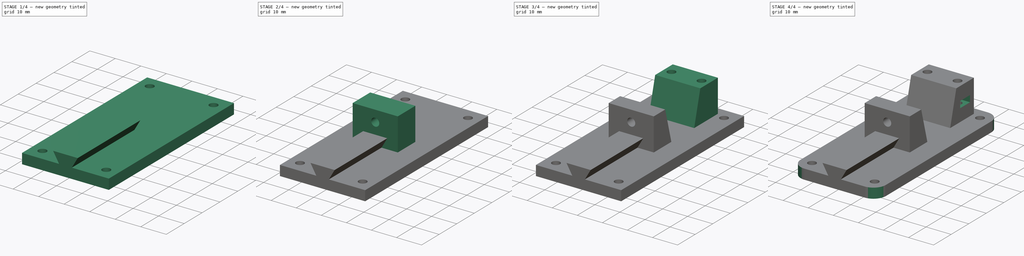
[diagram: build sequence overview — one tinted view per stage of 4, left to right]
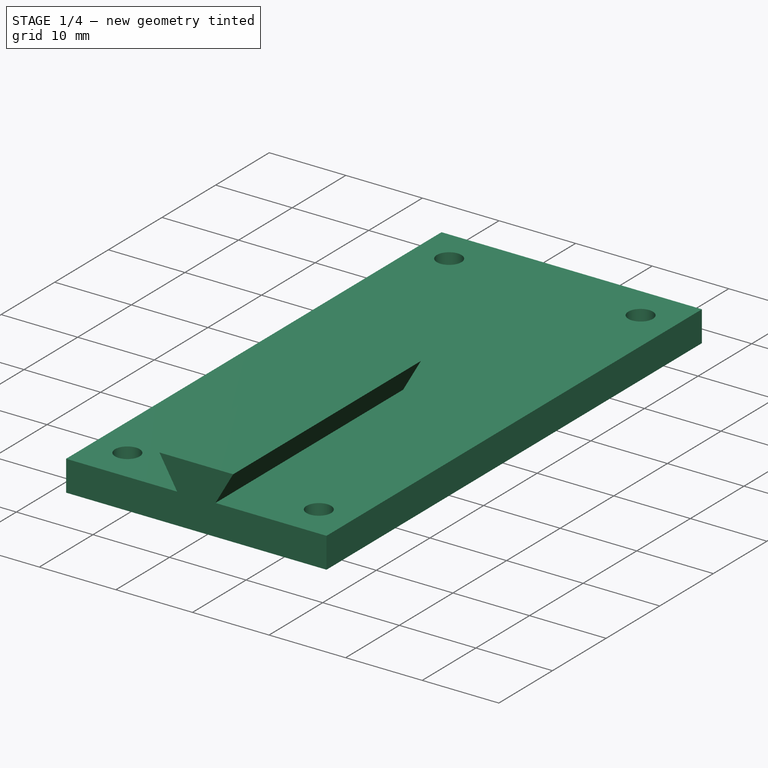
[diagram: stage 1 of 4 — iso view after this stage's code; geometry added in this stage tinted green]
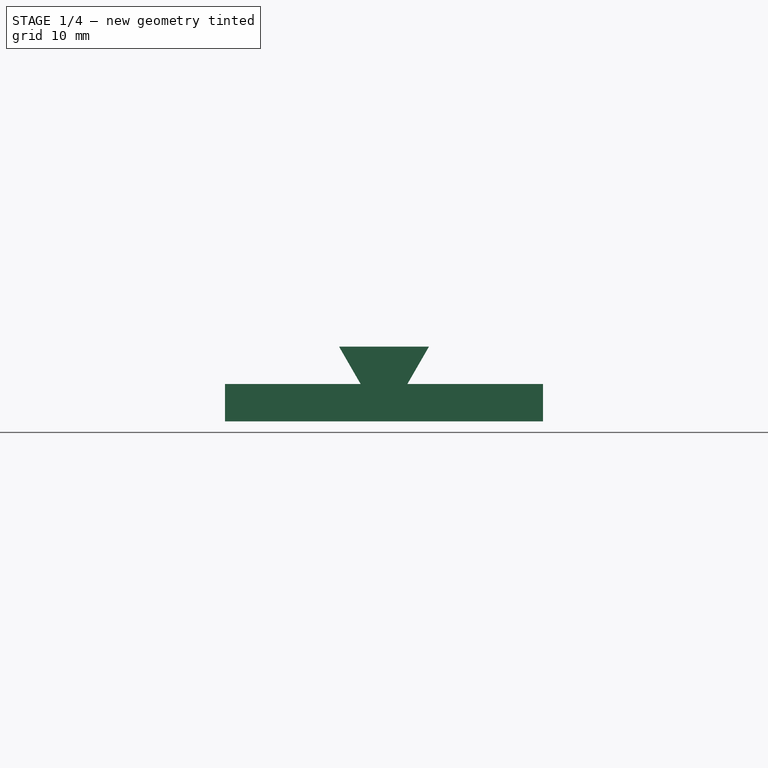
[diagram: stage 1 of 4 — front view after this stage's code; geometry added in this stage tinted green]
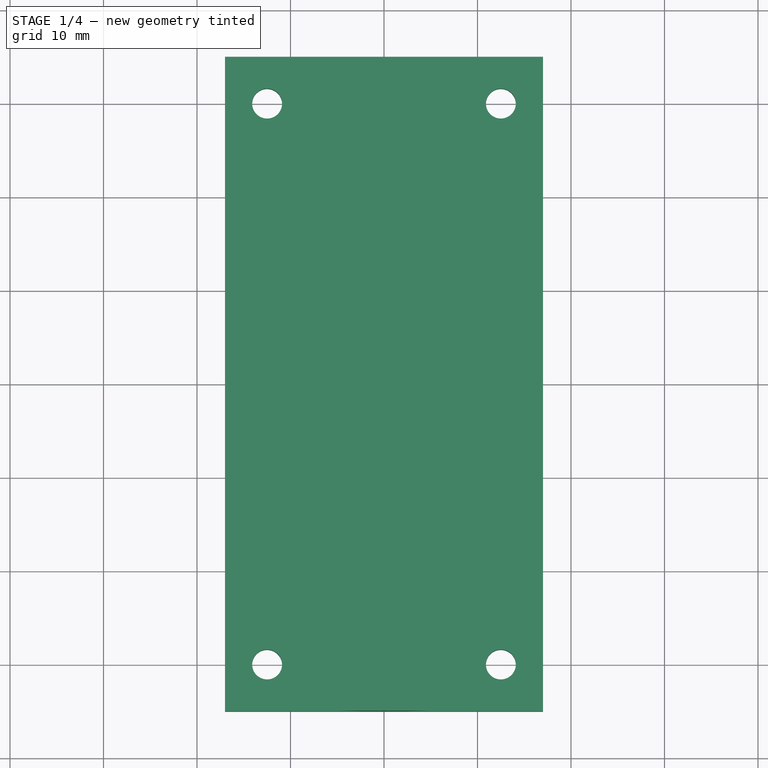
[diagram: stage 1 of 4 — top view after this stage's code; geometry added in this stage tinted green]
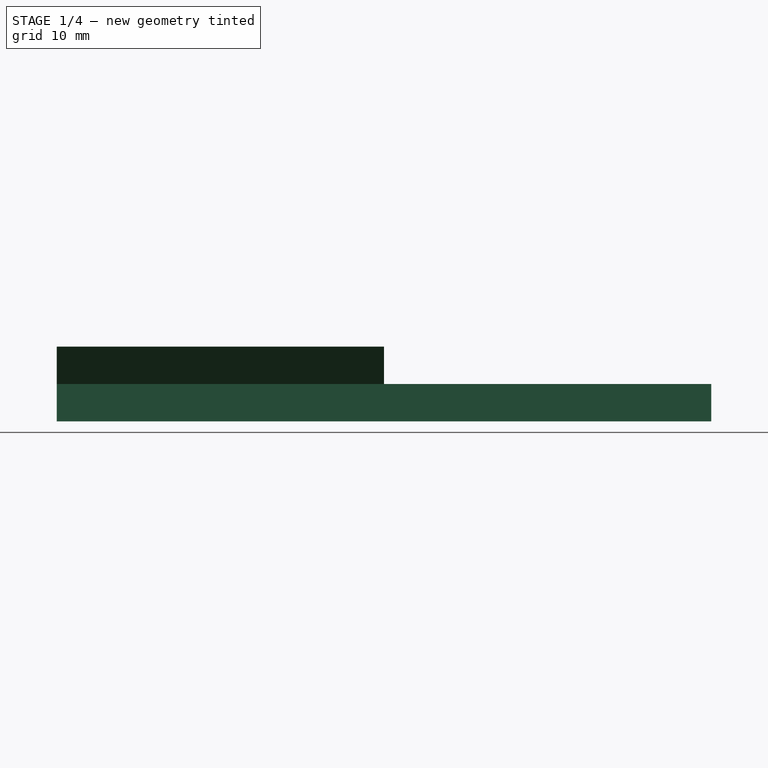
[diagram: stage 1 of 4 — right view after this stage's code; geometry added in this stage tinted green]
FCSTD DOCUMENT  (FreeCAD 0.18R14090 (Git))
Label: BedClamping2_Alt
License: All rights reserved
LicenseURL: http://en.wikipedia.org/wiki/All_rights_reserved
objects: Sketcher::SketchObject×7, PartDesign::Pad×4, PartDesign::Pocket×3, PartDesign::Draft×2, PartDesign::Plane×1, PartDesign::Fillet×1, PartDesign::Body×1, App::Part×1
note: 26 computed .brp shape members not serialized (recipe doc carries the construction recipe); baked Part::Feature solids carry a one-line shape summary decoded from their .brp

FEATURE [Sketcher::SketchObject] Sketch008  label="BC_RailSketch"
  MapMode = 5
  Placement = pos=(0,0,0) rot=(1,0,0;1.5708rad)
  Support = -> [XZ_Plane001]
  sketch-geometry (8):
    g0: LineSegment StartX=9 StartY=0 StartZ=0 EndX=9 EndY=4 EndZ=0
    g1: LineSegment StartX=-9 StartY=0 StartZ=0 EndX=-9 EndY=4 EndZ=0
    g2: LineSegment StartX=-9 StartY=4 StartZ=0 EndX=-2.5 EndY=4 EndZ=0
    g3: LineSegment StartX=9 StartY=4 StartZ=0 EndX=2.5 EndY=4 EndZ=0
    g4: LineSegment StartX=-2.5 StartY=4 StartZ=0 EndX=-4.8094 EndY=8 EndZ=0
    g5: LineSegment StartX=-4.8094 StartY=8 StartZ=0 EndX=4.8094 EndY=8 EndZ=0
    g6: LineSegment StartX=4.8094 StartY=8 StartZ=0 EndX=2.5 EndY=4 EndZ=0
    g7: LineSegment StartX=-9 StartY=0 StartZ=0 EndX=9 EndY=0 EndZ=0
  constraints (23):
    c: PointOnObject(g1,g-1)
    c: Vertical(g0)
    c: Vertical(g1)
    c: Coincident(g2,g1)
    c: Coincident(g3,g0)
    c: Coincident(g4,g2)
    c: Coincident(g5,g4)
    c: Horizontal(g5)
    c: Coincident(g6,g5)
    c: Coincident(g6,g3)
    c: Equal(g2,g3)
    c: Equal(g4,g6)
    c: Angle(g4,g2) = 1.0472
    c: Distance(g2,g3) = 5
    c: Distance(g2,g5) = 4
    c: Distance(g7) = 18
    c: Coincident(g1,g7)
    c: Coincident(g0,g7)
    c: Horizontal(g2)
    c: Horizontal(g3)
    c: Equal(g0,g1)
    c: Symmetric(g1,g0,g-2)
    c: Distance(g0) = 4
FEATURE [Sketcher::SketchObject] Sketch  label="BC_BaseSketch"
  MapMode = 5
  Support = -> [XY_Plane001]
  sketch-geometry (8):
    g0: LineSegment StartX=-17 StartY=35 StartZ=0 EndX=17 EndY=35 EndZ=0
    g1: LineSegment StartX=17 StartY=35 StartZ=0 EndX=17 EndY=-35 EndZ=0
    g2: LineSegment StartX=17 StartY=-35 StartZ=0 EndX=-17 EndY=-35 EndZ=0
    g3: LineSegment StartX=-17 StartY=-35 StartZ=0 EndX=-17 EndY=35 EndZ=0
    g4: Circle CenterX=-12.5 CenterY=30 CenterZ=0 NormalX=0 NormalY=0 NormalZ=1 AngleXU=0 Radius=1.6
    g5: Circle CenterX=12.5 CenterY=30 CenterZ=0 NormalX=0 NormalY=0 NormalZ=1 AngleXU=0 Radius=1.6
    g6: Circle CenterX=-12.5 CenterY=-30 CenterZ=0 NormalX=0 NormalY=0 NormalZ=1 AngleXU=0 Radius=1.6
    g7: Circle CenterX=12.5 CenterY=-30 CenterZ=0 NormalX=0 NormalY=0 NormalZ=1 AngleXU=0 Radius=1.6
  constraints (19):
    c: Coincident(g0,g1)
    c: Coincident(g1,g2)
    c: Coincident(g2,g3)
    c: Coincident(g3,g0)
    c: Horizontal(g0)
    c: Vertical(g3)
    c: Symmetric(g1,g2,g-2)
    c: Symmetric(g1,g0,g-1)
    c: Distance(g1) = 70
    c: Distance(g0) = 34
    c: Equal(g7,g5)
    c: Equal(g5,g4)
    c: Equal(g4,g6)
    c: Radius(g4) = 1.6
    c: Symmetric(g7,g6,g-2)
    c: Symmetric(g5,g4,g-2)
    c: Symmetric(g4,g6,g-1)
    c: Distance(g4,g5) = 25
    c: Distance(g5,g0) = 5
FEATURE [PartDesign::Pad] Pad  label="BC_BasePad"
  Length = 4
  Length2 = 100
  Profile = -> Sketch
  Type = 0
FEATURE [PartDesign::Pad] Pad001  label="BC_RailPad"
  BaseFeature = -> Pad
  Length = 35
  Length2 = 100
  Profile = -> Sketch008
  Type = 0
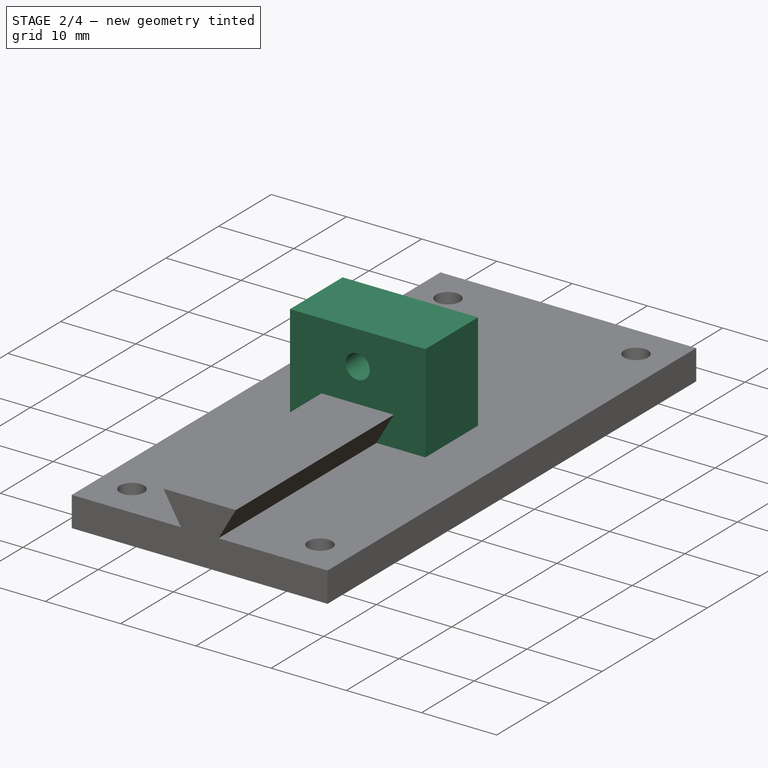
[diagram: stage 2 of 4 — iso view after this stage's code; geometry added in this stage tinted green]
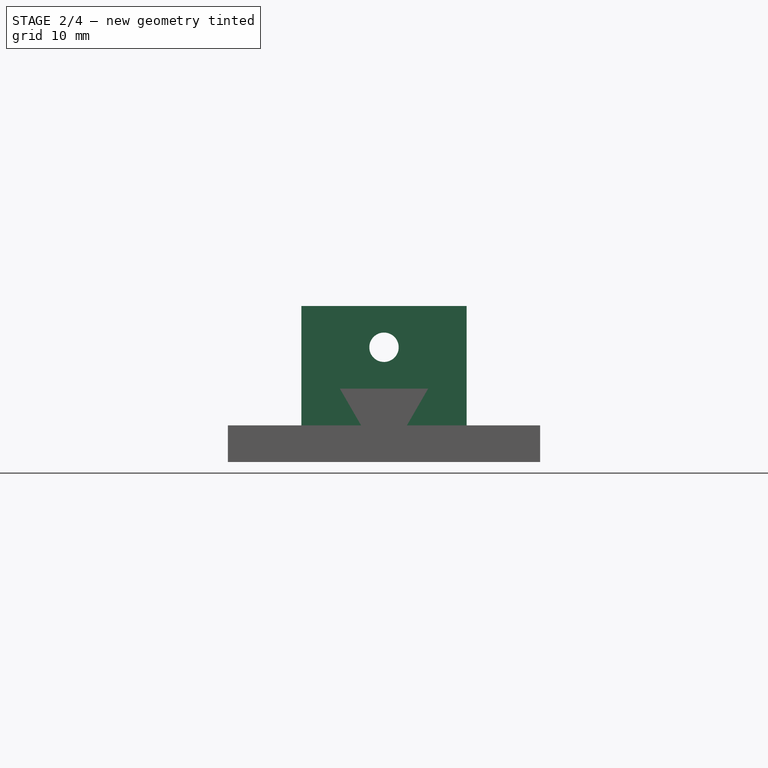
[diagram: stage 2 of 4 — front view after this stage's code; geometry added in this stage tinted green]
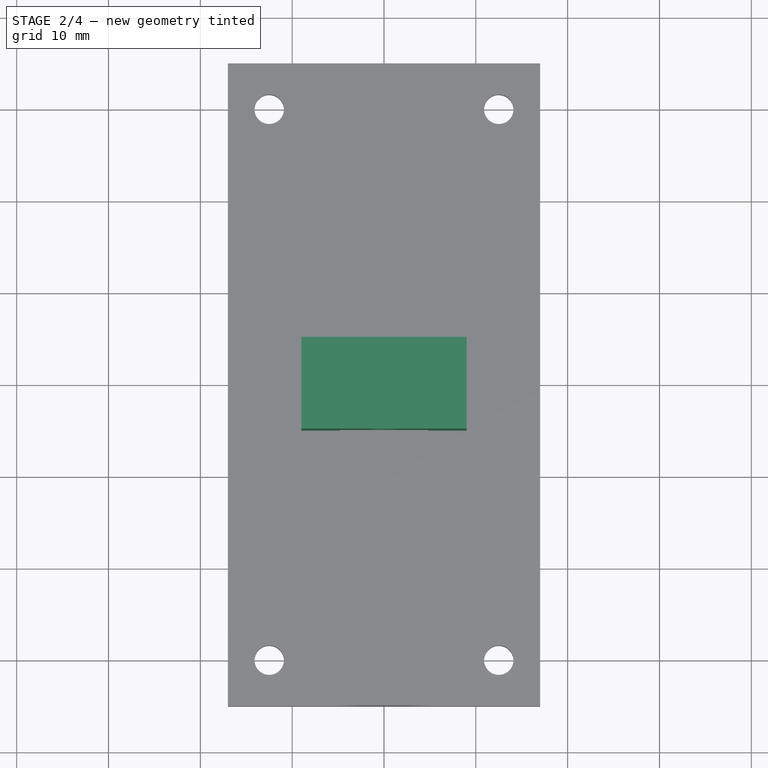
[diagram: stage 2 of 4 — top view after this stage's code; geometry added in this stage tinted green]
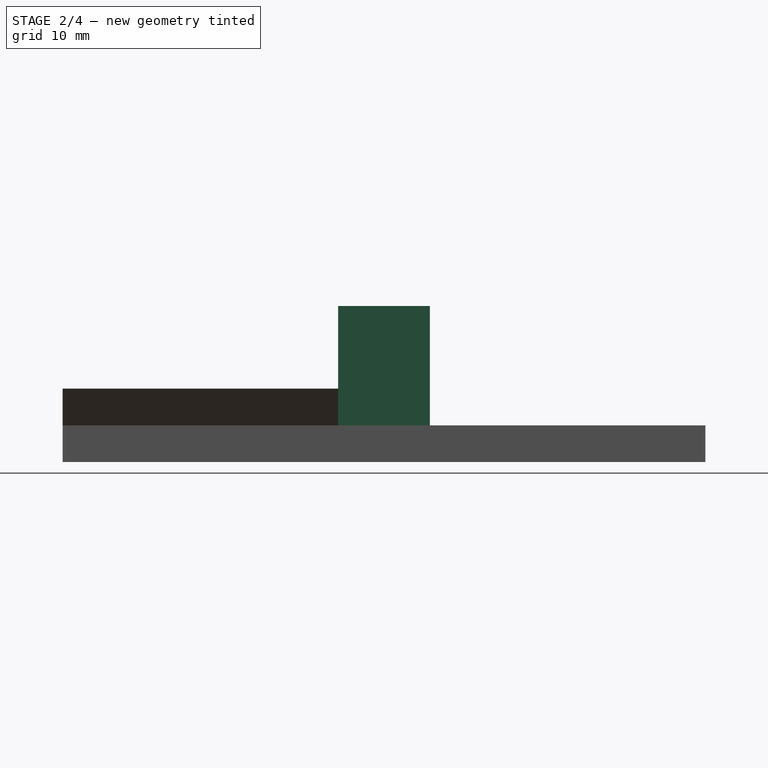
[diagram: stage 2 of 4 — right view after this stage's code; geometry added in this stage tinted green]
FEATURE [Sketcher::SketchObject] Sketch009  label="BC_BeltTensioner1Sketch"
  MapMode = 5
  Support = -> [XY_Plane001]
  sketch-geometry (4):
    g0: LineSegment StartX=-9 StartY=5 StartZ=0 EndX=9 EndY=5 EndZ=0
    g1: LineSegment StartX=9 StartY=5 StartZ=0 EndX=9 EndY=-5 EndZ=0
    g2: LineSegment StartX=9 StartY=-5 StartZ=0 EndX=-9 EndY=-5 EndZ=0
    g3: LineSegment StartX=-9 StartY=-5 StartZ=0 EndX=-9 EndY=5 EndZ=0
  constraints (10):
    c: Coincident(g0,g1)
    c: Coincident(g1,g2)
    c: Coincident(g2,g3)
    c: Coincident(g3,g0)
    c: Horizontal(g0)
    c: Vertical(g3)
    c: Symmetric(g1,g2,g-2)
    c: Symmetric(g1,g0,g-1)
    c: Distance(g0) = 18
    c: Distance(g3) = 10
FEATURE [PartDesign::Pad] Pad002  label="BC_BeltTensioner1Pad"
  BaseFeature = -> Pad001
  Length = 17
  Length2 = 100
  Profile = -> Sketch009
  Type = 0
FEATURE [Sketcher::SketchObject] Sketch010  label="BC_BeltTensioner1_ScrewHoleSketch"
  MapMode = 5
  Placement = pos=(0,0,0) rot=(1,0,0;1.5708rad)
  Support = -> [XZ_Plane001]
  sketch-geometry (1):
    g0: Circle CenterX=0 CenterY=12.5 CenterZ=0 NormalX=0 NormalY=0 NormalZ=1 AngleXU=0 Radius=1.6
  constraints (3):
    c: PointOnObject(g0,g-2)
    c: Distance(g-1,g0) = 12.5
    c: Radius(g0) = 1.6
FEATURE [PartDesign::Pocket] Pocket  label="BC_BeltTensioner1_ScrewHolePocket"
  BaseFeature = -> Pad002
  Length = 5
  Length2 = 100
  Midplane = true
  Profile = -> Sketch010
  Type = 1
FEATURE [Sketcher::SketchObject] Sketch011  label="BC_BeltTensioner1_ScrewNutSketch"
  ExternalGeometry = -> [Sketch010]
  MapMode = 5
  Placement = pos=(0,0,0) rot=(1,0,0;1.5708rad)
  Support = -> [XZ_Plane001]
  sketch-geometry (7):
    g0: LineSegment StartX=2.8 StartY=10.8834 StartZ=0 EndX=2.8 EndY=14.1166 EndZ=0
    g1: LineSegment StartX=2.8 StartY=14.1166 StartZ=0 EndX=0 EndY=15.7332 EndZ=0
    g2: LineSegment StartX=0 StartY=15.7332 StartZ=0 EndX=-2.8 EndY=14.1166 EndZ=0
    g3: LineSegment StartX=-2.8 StartY=14.1166 StartZ=0 EndX=-2.8 EndY=10.8834 EndZ=0
    g4: LineSegment StartX=-2.8 StartY=10.8834 StartZ=0 EndX=0 EndY=9.26684 EndZ=0
    g5: LineSegment StartX=0 StartY=9.26684 StartZ=0 EndX=2.8 EndY=10.8834 EndZ=0
    g6: Circle [constr] CenterX=0 CenterY=12.5 CenterZ=0 NormalX=0 NormalY=0 NormalZ=1 AngleXU=0 Radius=3.23316
  constraints (16):
    c: Coincident(g0,g1)
    c: Coincident(g1,g2)
    c: Coincident(g2,g3)
    c: Coincident(g3,g4)
    c: Coincident(g4,g5)
    c: Coincident(g5,g0)
    c: Equal(g0, g1-g5) x5
    c: PointOnObject(g0,g6)
    c: PointOnObject(g1,g6)
    c: PointOnObject(g2,g6)
    c: PointOnObject(g3,g6)
    c: PointOnObject(g4,g6)
    c: PointOnObject(g5,g6)
    c: Coincident(g6,g-3)
    c: Vertical(g0)
    c: Distance(g0,g2) = 5.6
FEATURE [PartDesign::Pocket] Pocket001  label="BC_BeltTensioner1_ScrewNutPocket"
  BaseFeature = -> Pocket
  Length = 5
  Length2 = 100
  Profile = -> Sketch011
  Type = 1
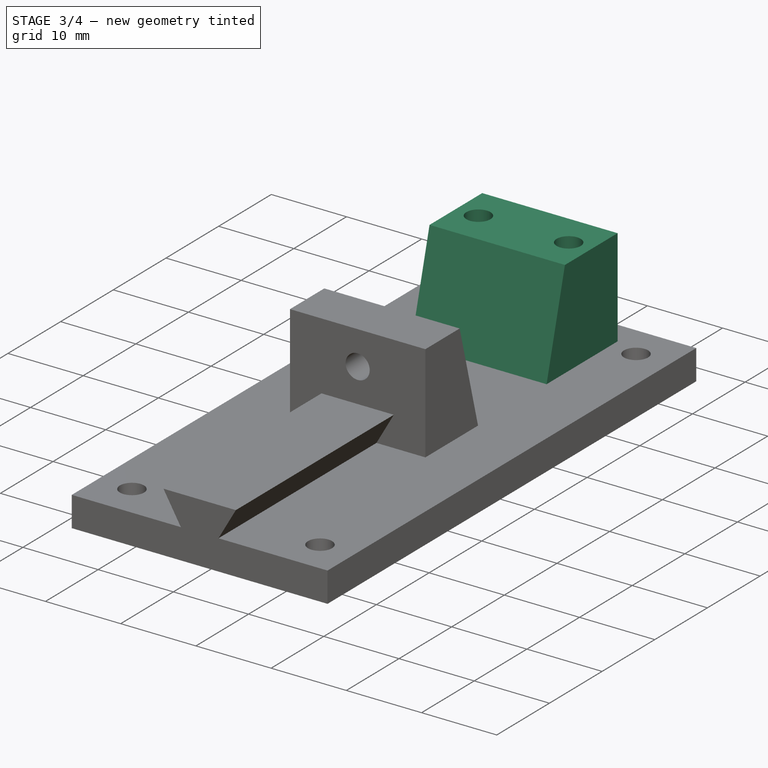
[diagram: stage 3 of 4 — iso view after this stage's code; geometry added in this stage tinted green]
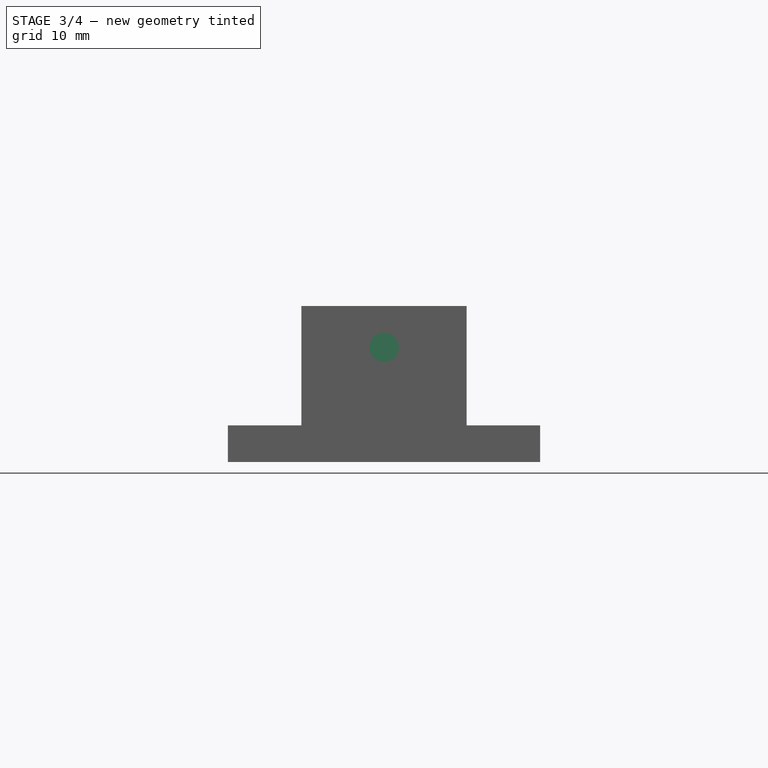
[diagram: stage 3 of 4 — front view after this stage's code; geometry added in this stage tinted green]
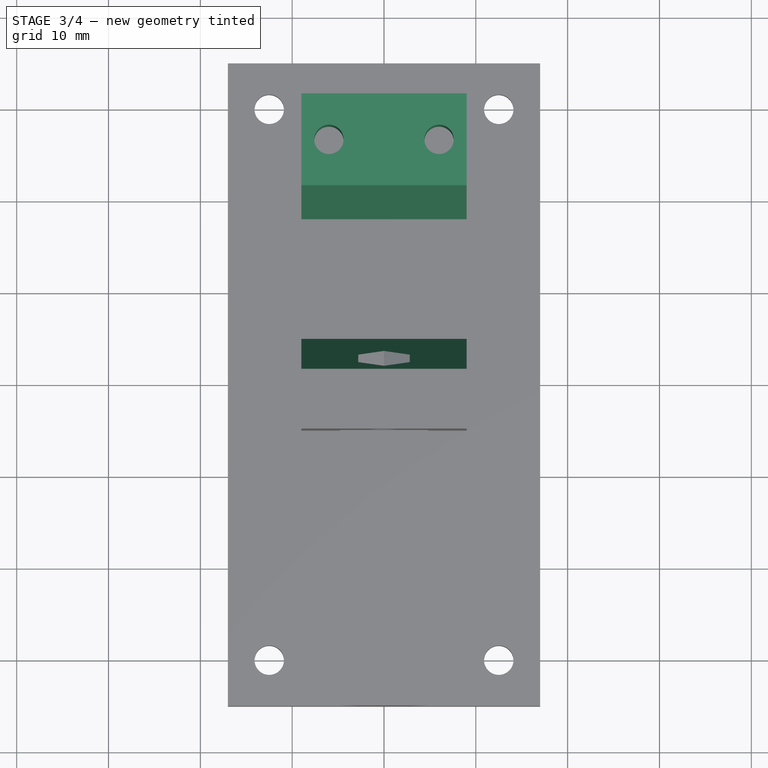
[diagram: stage 3 of 4 — top view after this stage's code; geometry added in this stage tinted green]
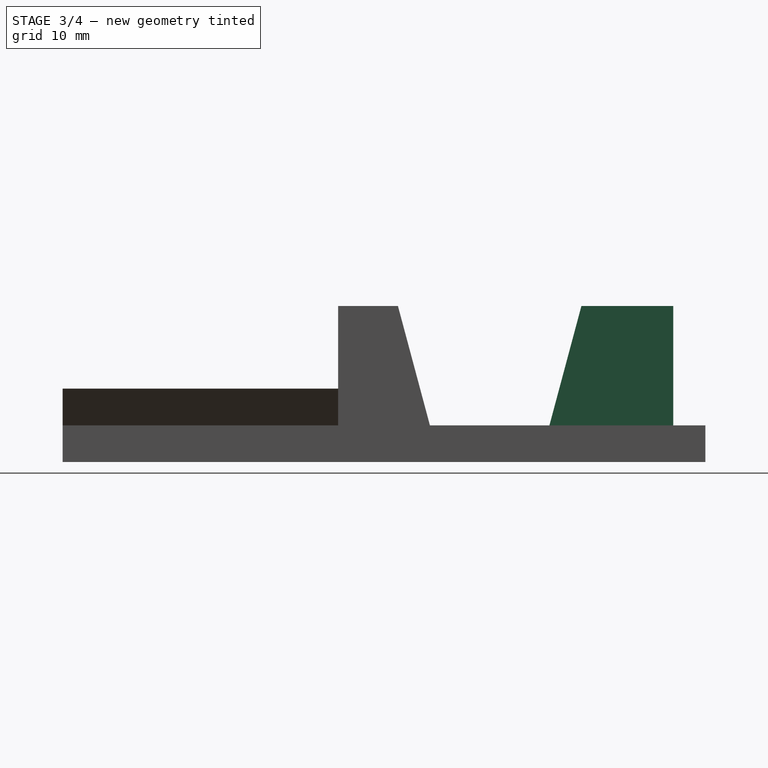
[diagram: stage 3 of 4 — right view after this stage's code; geometry added in this stage tinted green]
FEATURE [PartDesign::Draft] Draft  label="BC_BeltTensioner1Draft"
  Angle = 15
  Base = -> Pocket001 [Face17]
  BaseFeature = -> Pocket001
  NeutralPlane = -> Pocket001 [Face5]
  Reversed = true
FEATURE [Sketcher::SketchObject] Sketch012  label="BC_BeltTensioner2Sketch"
  ExternalGeometry = -> [Sketch]
  MapMode = 5
  Support = -> [XY_Plane001]
  sketch-geometry (8):
    g0: LineSegment StartX=-9 StartY=31.5 StartZ=0 EndX=9 EndY=31.5 EndZ=0
    g1: LineSegment StartX=9 StartY=31.5 StartZ=0 EndX=9 EndY=21.5 EndZ=0
    g2: LineSegment StartX=9 StartY=21.5 StartZ=0 EndX=-9 EndY=21.5 EndZ=0
    g3: LineSegment StartX=-9 StartY=21.5 StartZ=0 EndX=-9 EndY=31.5 EndZ=0
    g4: Circle CenterX=-6 CenterY=26.5 CenterZ=0 NormalX=0 NormalY=0 NormalZ=1 AngleXU=0 Radius=1.6
    g5: Circle CenterX=6 CenterY=26.5 CenterZ=0 NormalX=0 NormalY=0 NormalZ=1 AngleXU=0 Radius=1.6
    g6: LineSegment [constr] StartX=6 StartY=26.5 StartZ=0 EndX=6 EndY=31.5 EndZ=0
    g7: LineSegment [constr] StartX=6 StartY=26.5 StartZ=0 EndX=6 EndY=21.5 EndZ=0
  constraints (22):
    c: Coincident(g0,g1)
    c: Coincident(g1,g2)
    c: Coincident(g2,g3)
    c: Coincident(g3,g0)
    c: Horizontal(g2)
    c: Vertical(g1)
    c: Vertical(g3)
    c: Distance(g2,g-3) = 13.5
    c: Distance(g3) = 10
    c: Distance(g0) = 18
    c: Symmetric(g0,g0,g-2)
    c: Symmetric(g5,g4,g-2)
    c: Coincident(g6,g5)
    c: PointOnObject(g6,g0)
    c: Vertical(g6)
    c: Coincident(g7,g5)
    c: PointOnObject(g7,g2)
    c: Vertical(g7)
    c: Equal(g7,g6)
    c: Distance(g5,g4) = 12
    c: Equal(g5,g4)
    c: Radius(g4) = 1.6
FEATURE [PartDesign::Pad] Pad003  label="BC_BeltTensioner2Pad"
  BaseFeature = -> Draft
  Length = 17
  Length2 = 100
  Profile = -> Sketch012
  Type = 0
FEATURE [PartDesign::Draft] Draft001  label="BC_BeltTensioner2Draft"
  Angle = 15
  Base = -> Pad003 [Face23]
  BaseFeature = -> Pad003
  NeutralPlane = -> Pad003 [Face38]
  Reversed = true
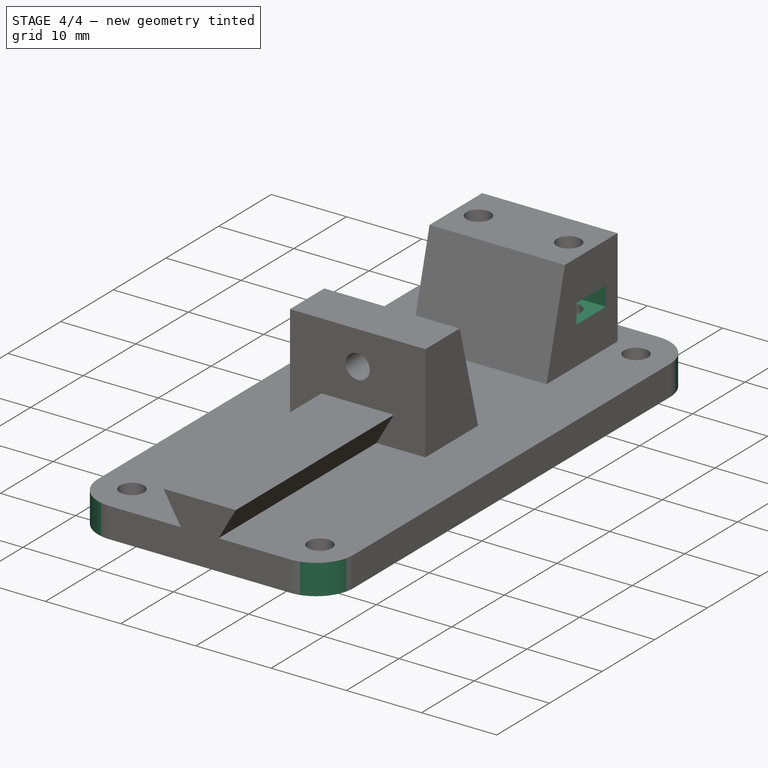
[diagram: stage 4 of 4 — iso view after this stage's code; geometry added in this stage tinted green]
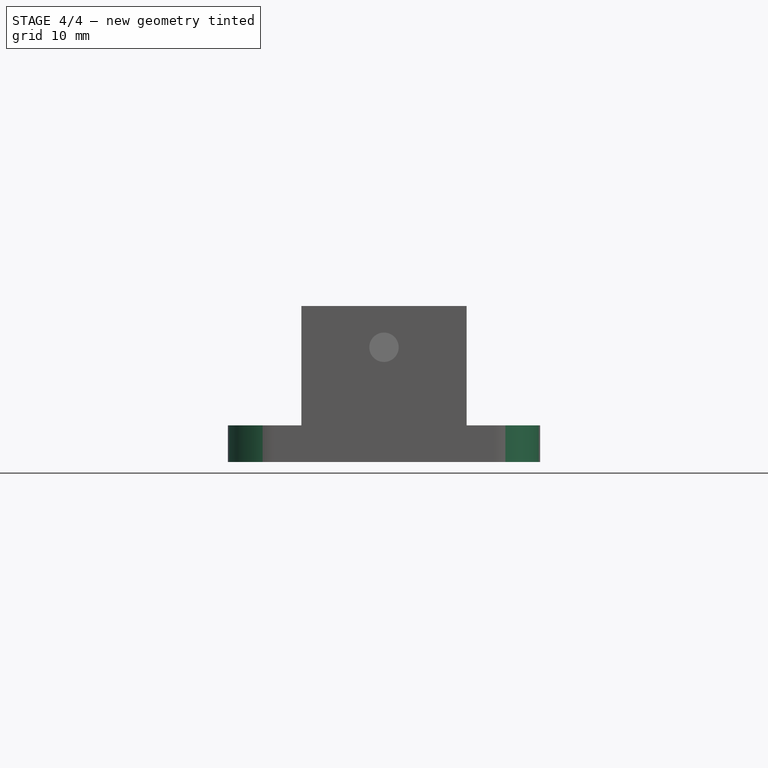
[diagram: stage 4 of 4 — front view after this stage's code; geometry added in this stage tinted green]
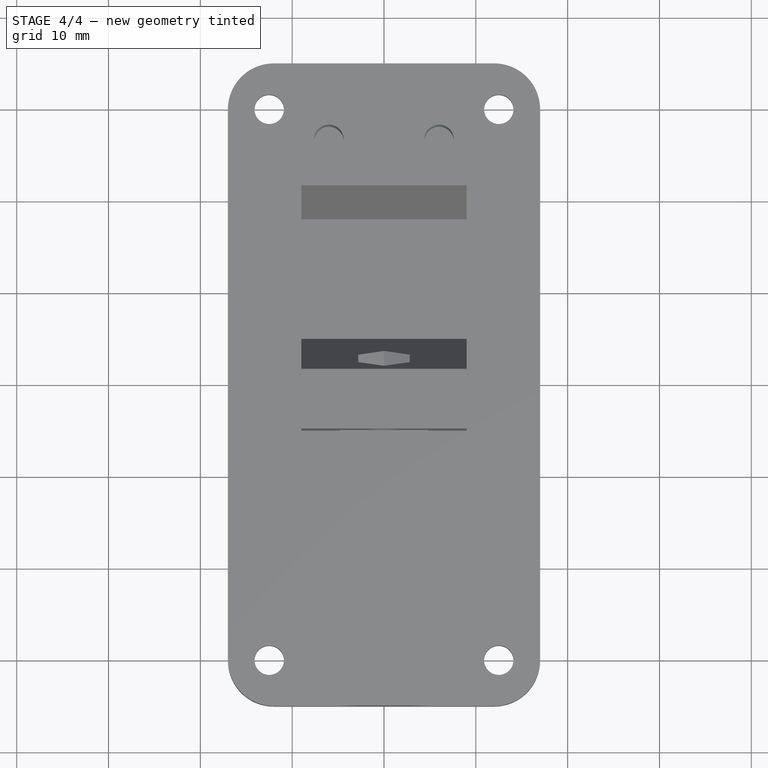
[diagram: stage 4 of 4 — top view after this stage's code; geometry added in this stage tinted green]
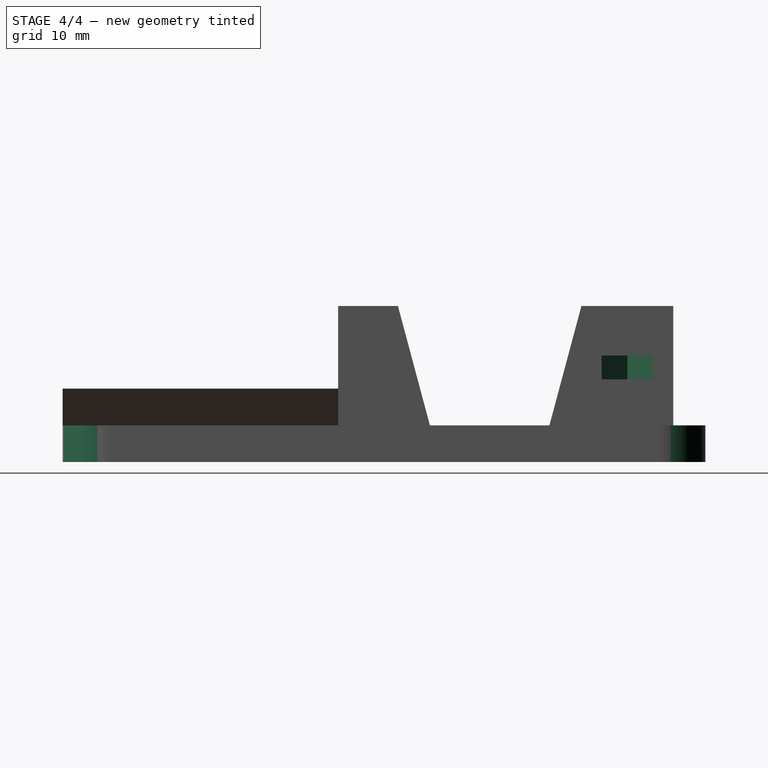
[diagram: stage 4 of 4 — right view after this stage's code; geometry added in this stage tinted green]
FEATURE [PartDesign::Plane] DatumPlane  label="BC_BeltTensioner2_NutsPlane"
  AttachmentOffset = pos=(0,0,9) rot=(0,0,1;0rad)
  MapMode = 5
  Placement = pos=(0,0,9) rot=(0,0,1;0rad)
  Support = -> [XY_Plane001]
FEATURE [Sketcher::SketchObject] Sketch013  label="BC_BeltTensioner2_NutsSketch"
  ExternalGeometry = -> [Sketch012]
  MapMode = 5
  Placement = pos=(0,0,9) rot=(0,0,1;0rad)
  Support = -> [DatumPlane]
  sketch-geometry (20):
    g0: LineSegment StartX=-7.61658 StartY=23.7 StartZ=0 EndX=-4.38342 EndY=23.7 EndZ=0
    g1: LineSegment StartX=-4.38342 StartY=23.7 StartZ=0 EndX=-2.76684 EndY=26.5 EndZ=0
    g2: LineSegment StartX=-2.76684 StartY=26.5 StartZ=0 EndX=-4.38342 EndY=29.3 EndZ=0
    g3: LineSegment StartX=-4.38342 StartY=29.3 StartZ=0 EndX=-7.61658 EndY=29.3 EndZ=0
    g4: LineSegment [constr] StartX=-7.61658 StartY=29.3 StartZ=0 EndX=-9.23316 EndY=26.5 EndZ=0
    g5: LineSegment [constr] StartX=-9.23316 StartY=26.5 StartZ=0 EndX=-7.61658 EndY=23.7 EndZ=0
    g6: Circle [constr] CenterX=-6 CenterY=26.5 CenterZ=0 NormalX=0 NormalY=0 NormalZ=1 AngleXU=0 Radius=3.23316
    g7: LineSegment StartX=4.38342 StartY=23.7 StartZ=0 EndX=7.61658 EndY=23.7 EndZ=0
    g8: LineSegment [constr] StartX=7.61658 StartY=23.7 StartZ=0 EndX=9.23316 EndY=26.5 EndZ=0
    g9: LineSegment [constr] StartX=9.23316 StartY=26.5 StartZ=0 EndX=7.61658 EndY=29.3 EndZ=0
    g10: LineSegment StartX=7.61658 StartY=29.3 StartZ=0 EndX=4.38342 EndY=29.3 EndZ=0
    g11: LineSegment StartX=4.38342 StartY=29.3 StartZ=0 EndX=2.76684 EndY=26.5 EndZ=0
    g12: LineSegment StartX=2.76684 StartY=26.5 StartZ=0 EndX=4.38342 EndY=23.7 EndZ=0
    g13: Circle [constr] CenterX=6 CenterY=26.5 CenterZ=0 NormalX=0 NormalY=0 NormalZ=1 AngleXU=0 Radius=3.23316
    g14: LineSegment StartX=-7.61658 StartY=29.3 StartZ=0 EndX=-12.6166 EndY=29.3 EndZ=0
    g15: LineSegment StartX=-12.6166 StartY=29.3 StartZ=0 EndX=-12.6166 EndY=23.7 EndZ=0
    g16: LineSegment StartX=-12.6166 StartY=23.7 StartZ=0 EndX=-7.61658 EndY=23.7 EndZ=0
    g17: LineSegment StartX=7.61658 StartY=23.7 StartZ=0 EndX=12.6166 EndY=23.7 EndZ=0
    g18: LineSegment StartX=12.6166 StartY=23.7 StartZ=0 EndX=12.6166 EndY=29.3 EndZ=0
    g19: LineSegment StartX=12.6166 StartY=29.3 StartZ=0 EndX=7.61658 EndY=29.3 EndZ=0
  constraints (48):
    c: Coincident(g0,g1)
    c: Coincident(g1,g2)
    c: Coincident(g2,g3)
    c: Coincident(g3,g4)
    c: Coincident(g4,g5)
    c: Coincident(g5,g0)
    c: Equal(g0, g1-g5) x5
    c: PointOnObject(g0,g6)
    c: PointOnObject(g1,g6)
    c: PointOnObject(g2,g6)
    c: PointOnObject(g3,g6)
    c: PointOnObject(g4,g6)
    c: PointOnObject(g5,g6)
    c: Coincident(g6,g-3)
    c: Coincident(g7,g8)
    c: Coincident(g8,g9)
    c: Coincident(g9,g10)
    c: Coincident(g10,g11)
    c: Coincident(g11,g12)
    c: Coincident(g12,g7)
    c: Equal(g7, g8-g12) x5
    c: PointOnObject(g7,g13)
    c: PointOnObject(g8,g13)
    c: PointOnObject(g9,g13)
    c: PointOnObject(g10,g13)
    c: PointOnObject(g11,g13)
    c: PointOnObject(g12,g13)
    c: Coincident(g13,g-4)
    c: Horizontal(g10)
    c: Horizontal(g3)
    c: Equal(g10,g3)
    c: Distance(g9,g7) = 5.6
    c: Coincident(g14,g3)
    c: Horizontal(g14)
    c: Coincident(g15,g14)
    c: Vertical(g15)
    c: Coincident(g16,g15)
    c: Coincident(g16,g0)
    c: Horizontal(g16)
    c: Coincident(g17,g7)
    c: Horizontal(g17)
    c: Coincident(g18,g17)
    c: Vertical(g18)
    c: Coincident(g19,g18)
    c: Coincident(g19,g9)
    c: Horizontal(g19)
    c: Equal(g14,g19)
    c: Distance(g14) = 5
FEATURE [PartDesign::Pocket] Pocket002  label="BC_BeltTensioner2_NutsPocket"
  BaseFeature = -> Draft001
  Length = 2.6
  Length2 = 100
  Profile = -> Sketch013
  Reversed = true
  Type = 0
FEATURE [PartDesign::Fillet] Fillet  label="BC_CornersFillet1"
  Base = -> Pocket002 [Edge8,Edge5,Edge1,Edge2]
  BaseFeature = -> Pocket002
  Radius = 5
FEATURE [PartDesign::Body] Body  label="BeltClampingBody"
  Group = -> [Sketch008,Sketch,Pad,Pad001,Sketch009,Pad002,Sketch010,Pocket,Sketch011,Pocket001,Draft,Sketch012,Pad003,Draft001,DatumPlane,Sketch013,Pocket002,Fillet]
  Origin = -> Origin001
  Tip = -> Fillet
FEATURE [App::Part] Part  label="BeltClampingPart"
  Group = -> [Body]
  License = CC BY 3.0
  LicenseURL = http://creativecommons.org/licenses/by/3.0/
  Origin = -> Origin
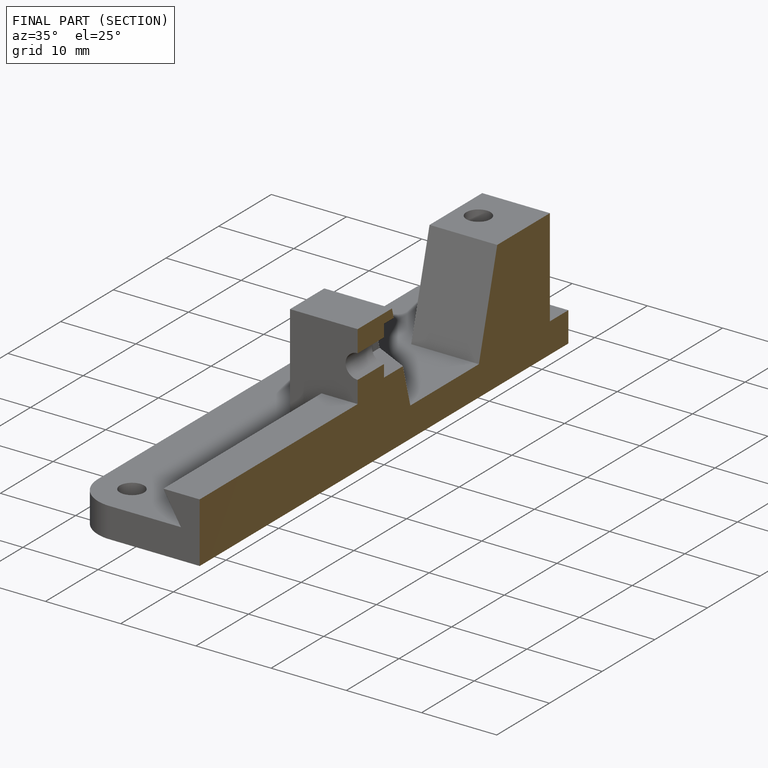
[diagram: finished part — half-section view (interior)]
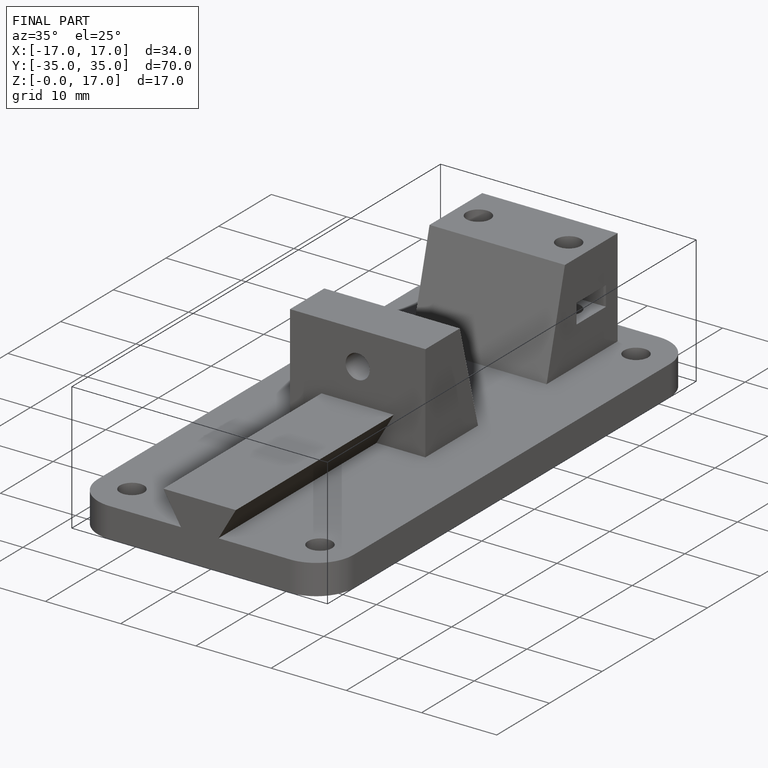
[diagram: finished part — iso view with bounding-box wireframe]
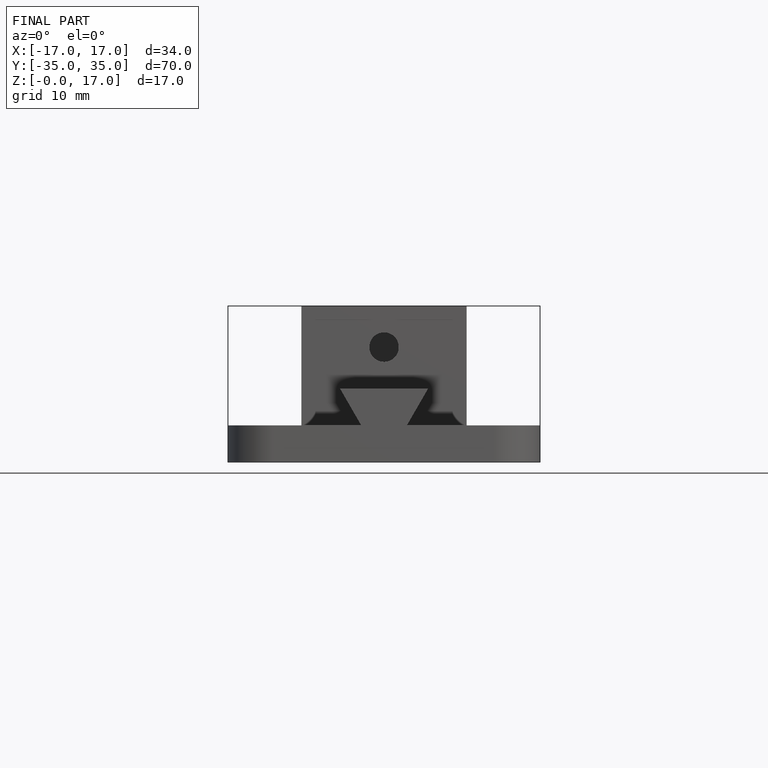
[diagram: finished part — front view with bounding-box wireframe]
